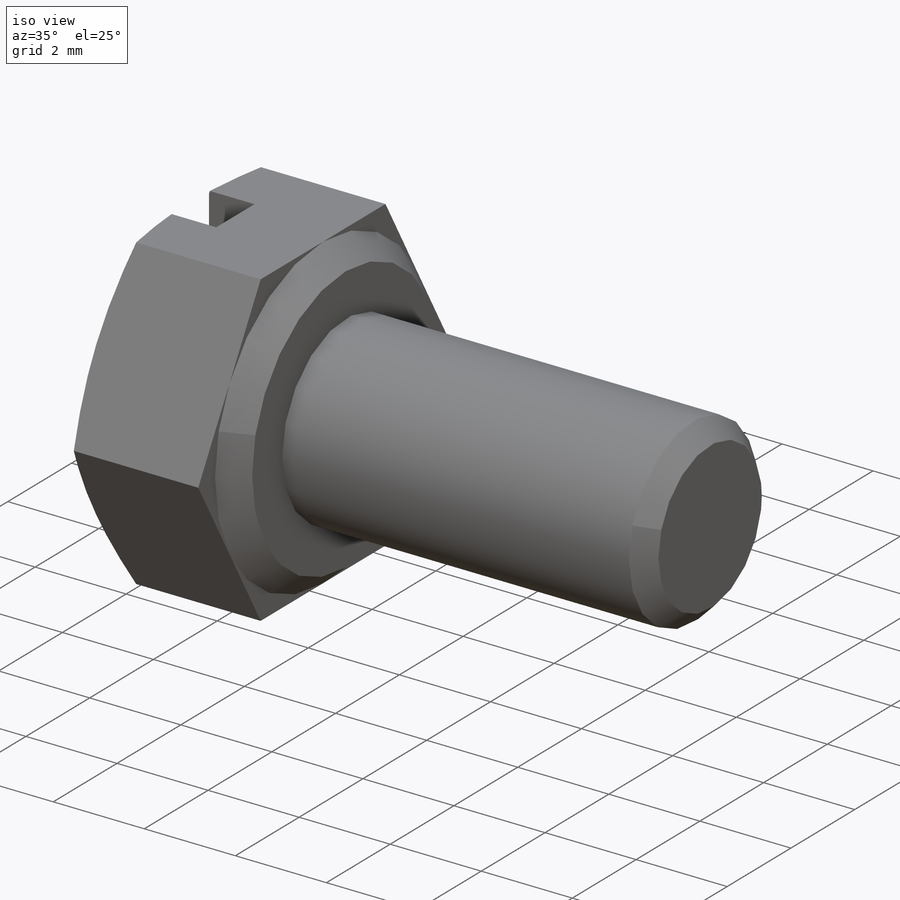
[diagram: iso view]
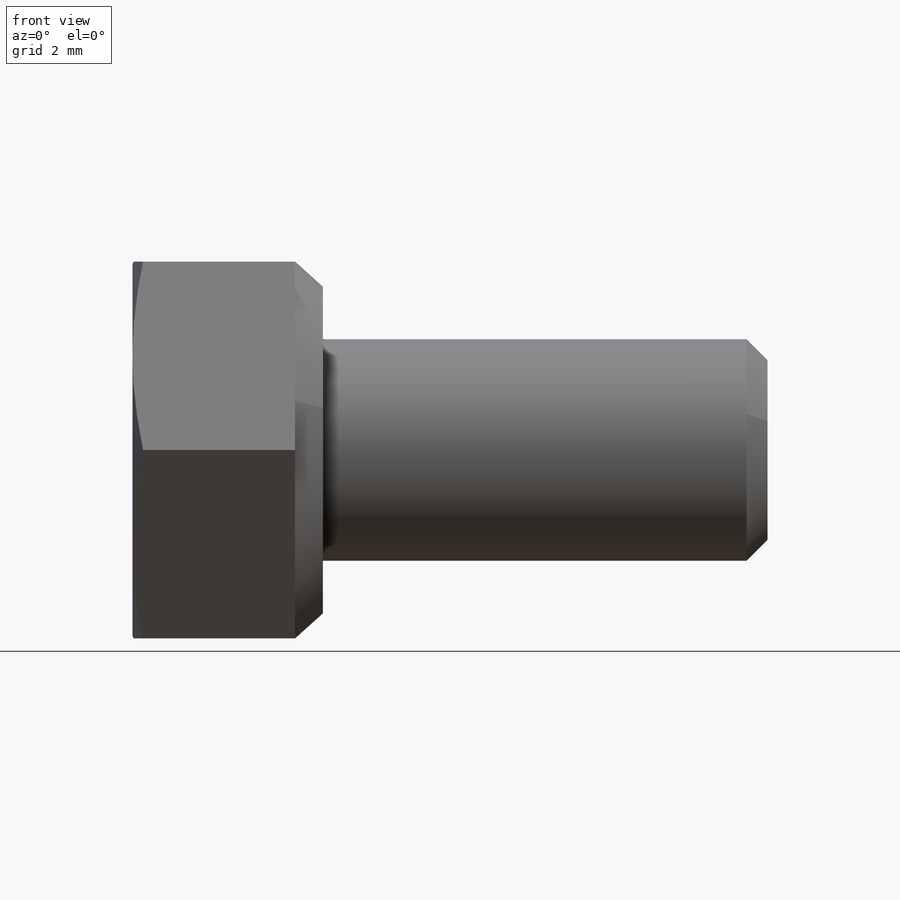
[diagram: front view]
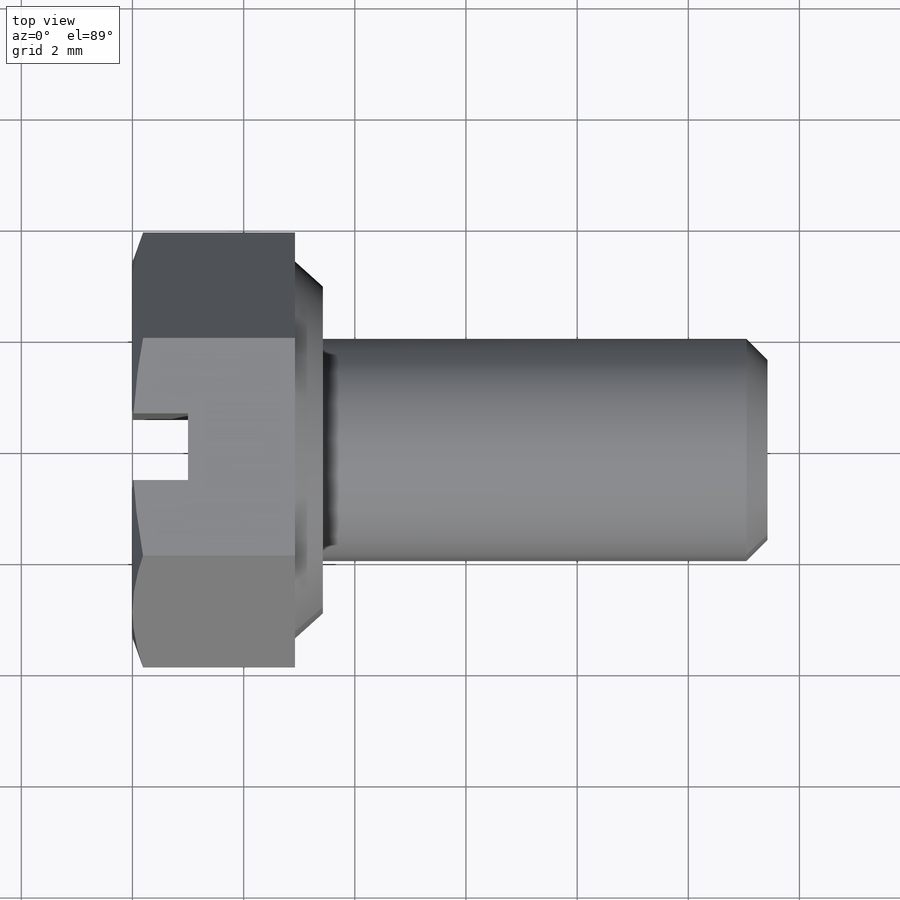
[diagram: top view]
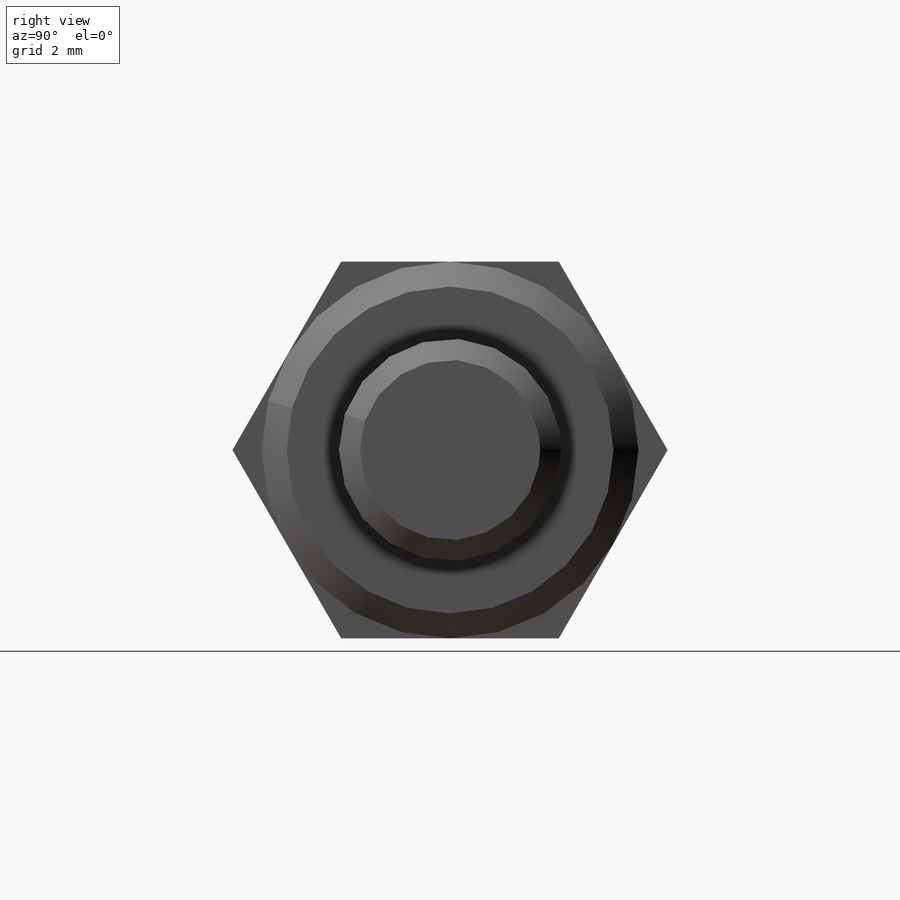
[diagram: right view]
SOLIDWORKS PART (.sldprt)
format: sldprt  version: not decoded by parser v0  size: 474,624 bytes
history: native  units: mm
features: sketch x6, extrude x2, cut_revolve x2, material x1, plane x1, revolve x1, thread x1, chamfer x1, fillet x1, cut_extrude x1, pattern_linear x1 (+12 scaffold rows collapsed)
feature tree (30):
  scaffold x12  (default folders/planes/origin — collapsed)
  material  "材质 <未指定>"
  sketch  "Sketch-BaseHead"  dims[s=6.78mm]
  extrude  "BaseHead"  Depth=2.925mm k=2.925mm
  plane  "Plane1"  Offset=0.4mm c=0.4mm
  sketch  "Sketch1"  dims[c1.D1=~3.628155mm c1.D2=4.45mm c1.D3=4.895mm c2.D1=3.39mm c2.D2=4.895mm c3.D1=4.895mm c3.D3=2.94mm]
  revolve  "Revolve1"  Angle=360deg
  sketch  "Sketch3"  dims[d=4.0mm]
  extrude  "BaseBody"  [1 undecoded]
  thread  "ThreadCosmetic1"  Diameter=3.242mm l=8mm  [1 undecoded]
  chamfer  "Chamfer1"  Distance=0.379mm Angle=45deg
  fillet  "HeadFillet"  Radius=0.2mm r=0.2mm
  sketch  "Sketch4"  dims[c1.D1=~0.729054mm c2.D1=20.0deg c2.D2=6.78mm]
  cut_revolve  "HeadChamfer"  Angle=360deg
  sketch  "Sketch5"  dims[n=1.2mm t=1.0mm]
  cut_extrude  "Slot"  [1 undecoded]
  sketch  "Sketch6"  dims[D1=0.2mm D2=0.379mm]
  cut_revolve  "Cut-Revolve10"  Angle=360deg
  pattern_linear  "LPattern10"  Count1=18 Count2=1 Spacing1=0.4548mm Spacing2=50mm
decode coverage: 14 of 16 modeling features carry decoded parameters
note: ~ marks probable driven/reference dimensions
note: 3 parameter values undecoded
note: suppression state not decoded; provenance and decode notes live in map.json
